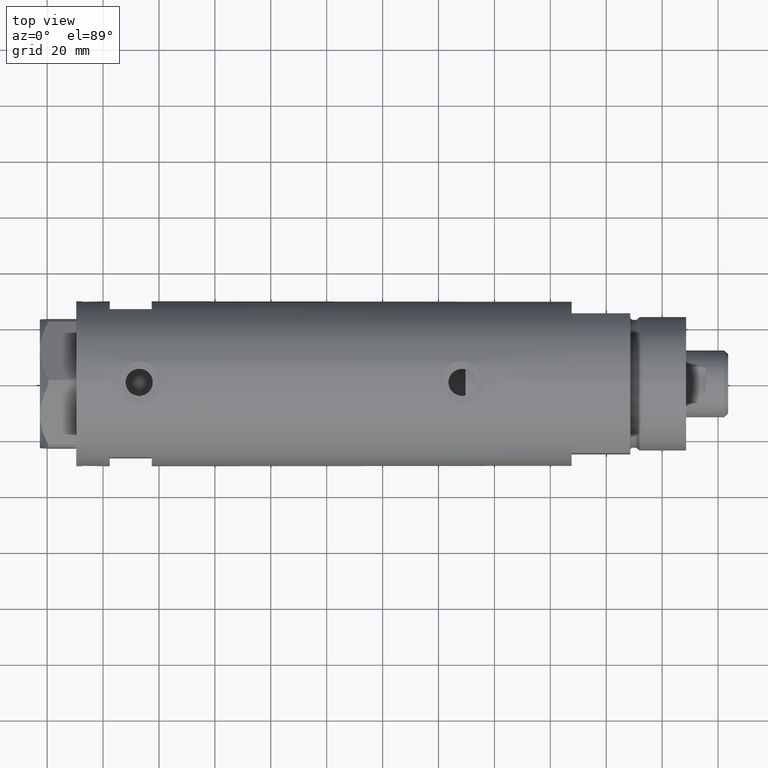
[diagram: clean part render]
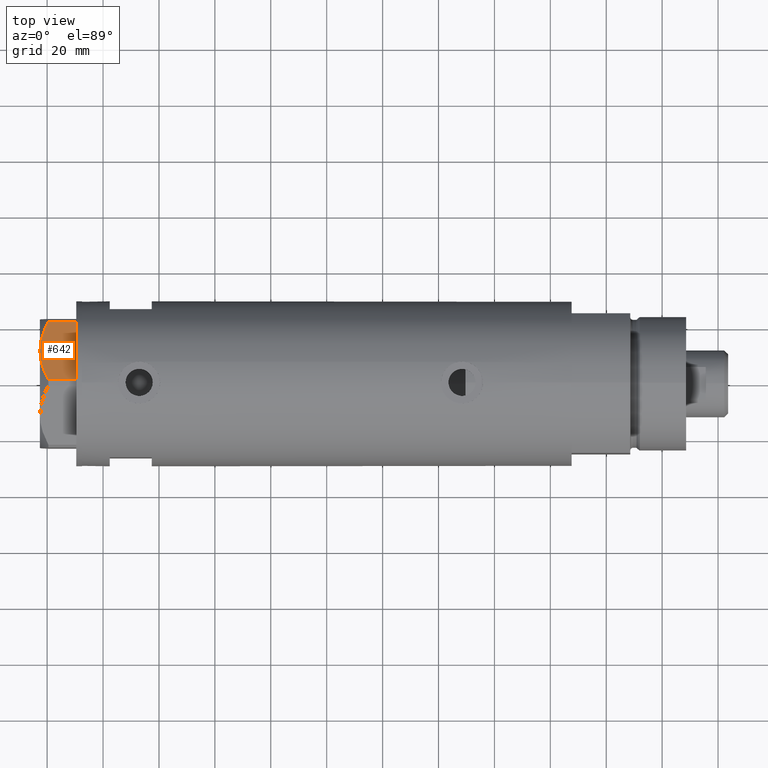
[diagram: same view with one face highlighted and labeled with its STEP entity id]
A machine part, top view. The second image highlights one B-rep face of the part: STEP entity #642.
In plain terms, the highlighted planar face has unit normal (-0, -0.5, -0.866).
Its self-contained STEP definition (entity closure, byte-faithful):
#51 = CARTESIAN_POINT ( 'NONE',  ( 13.32175508098997518, -18.86679350063487703, 13.00000000000009059 ) ) ;
#208 = CARTESIAN_POINT ( 'NONE',  ( 0.9699484522387532559, -25.99811238272273428, 13.00000000000000000 ) ) ;
#334 = B_SPLINE_CURVE_WITH_KNOTS ( 'NONE', 3,
 ( #1753, #3922, #3468, #3128, #837, #1235, #2293, #4303, #3310, #1272 ),
 .UNSPECIFIED., .F., .F.,
 ( 4, 2, 2, 2, 4 ),
 ( 0.001228959670438509785, 0.007497079744270810156, 0.01063113978118696706, 0.01219816979964504465, 0.01376519981810312224 ),
 .UNSPECIFIED. ) ;
#422 = CARTESIAN_POINT ( 'NONE',  ( 19.07486218897005870, -15.54523556316577171, 11.39727285399141365 ) ) ;
#446 = CARTESIAN_POINT ( 'NONE',  ( 18.64279229058406173, -15.79469123530766517, 11.57055225522972286 ) ) ;
#483 = ORIENTED_EDGE ( 'NONE', *, *, #1480, .T. ) ;
#560 = ORIENTED_EDGE ( 'NONE', *, *, #1383, .F. ) ;
#566 = CARTESIAN_POINT ( 'NONE',  ( 22.03005154776154129, -13.83905619136115384, 9.983800287807621743 ) ) ;
#642 = ADVANCED_FACE ( 'NONE', ( #2905 ), #1184, .F. ) ;
#688 = EDGE_LOOP ( 'NONE', ( #1562, #3251, #483, #1734, #560 ) ) ;
#837 = CARTESIAN_POINT ( 'NONE',  ( 7.836767740116727943, -22.03355241838979595, 12.63731396715694544 ) ) ;
#849 = DIRECTION ( 'NONE',  ( -0.8660254037844345998, -0.5000000000000069944, 0.000000000000000000 ) ) ;
#853 = DIRECTION ( 'NONE',  ( 0.8660254037844345998, 0.5000000000000069944, 0.000000000000000000 ) ) ;
#1071 = EDGE_CURVE ( 'NONE', #3324, #1481, #334, .T. ) ;
#1184 = PLANE ( 'NONE',  #2063 ) ;
#1235 = CARTESIAN_POINT ( 'NONE',  ( 9.197898616903064095, -21.24770314027487927, 12.85271263895580240 ) ) ;
#1272 = CARTESIAN_POINT ( 'NONE',  ( 11.50000000000018296, -19.91858428704203732, 13.00000000000000000 ) ) ;
#1383 = EDGE_CURVE ( 'NONE', #1481, #4335, #1570, .T. ) ;
#1480 = EDGE_CURVE ( 'NONE', #2479, #1510, #2251, .T. ) ;
#1481 = VERTEX_POINT ( 'NONE', #2616 ) ;
#1496 = CARTESIAN_POINT ( 'NONE',  ( 1.854543075583504180E-13, -26.55811238272274366, 13.00000000000000000 ) ) ;
#1510 = VERTEX_POINT ( 'NONE', #4300 ) ;
#1562 = ORIENTED_EDGE ( 'NONE', *, *, #1071, .F. ) ;
#1570 = B_SPLINE_CURVE_WITH_KNOTS ( 'NONE', 3,
 ( #2521, #51, #3559, #3508, #2443, #446, #422, #1792, #4161, #2835 ),
 .UNSPECIFIED., .F., .F.,
 ( 4, 2, 2, 2, 4 ),
 ( 0.01376519981810312224, 0.01998941321701590279, 0.02154546656674409533, 0.02310151991647228786, 0.02621362661592867294 ),
 .UNSPECIFIED. ) ;
#1734 = ORIENTED_EDGE ( 'NONE', *, *, #3841, .T. ) ;
#1753 = CARTESIAN_POINT ( 'NONE',  ( 0.9699484522386113694, -25.99811238272281955, 9.983800287807545359 ) ) ;
#1792 = CARTESIAN_POINT ( 'NONE',  ( 20.35958612119338085, -14.80349985506226673, 10.84420102443838552 ) ) ;
#1918 = DIRECTION ( 'NONE',  ( 0.000000000000000000, 0.000000000000000000, 1.000000000000000000 ) ) ;
#1934 = DIRECTION ( 'NONE',  ( 0.000000000000000000, 0.000000000000000000, -1.000000000000000000 ) ) ;
#1944 = EDGE_CURVE ( 'NONE', #3324, #2479, #3046, .T. ) ;
#1946 = CARTESIAN_POINT ( 'NONE',  ( 1.854543075583504180E-13, -26.55811238272274366, 0.000000000000000000 ) ) ;
#2063 = AXIS2_PLACEMENT_3D ( 'NONE', #1496, #2564, #849 ) ;
#2229 = VECTOR ( 'NONE', #1934, 1000.000000000000000 ) ;
#2251 = LINE ( 'NONE', #1946, #4384 ) ;
#2293 = CARTESIAN_POINT ( 'NONE',  ( 9.656518383329991906, -20.98291889467260773, 12.90784227772843451 ) ) ;
#2416 = CARTESIAN_POINT ( 'NONE',  ( 0.9699484522386113694, -25.99811238272281955, 9.983800287807545359 ) ) ;
#2443 = CARTESIAN_POINT ( 'NONE',  ( 17.77001848220202618, -16.29858742851869735, 11.89212886775844780 ) ) ;
#2479 = VERTEX_POINT ( 'NONE', #3463 ) ;
#2521 = CARTESIAN_POINT ( 'NONE',  ( 11.50000000000018296, -19.91858428704203732, 13.00000000000000000 ) ) ;
#2564 = DIRECTION ( 'NONE',  ( -0.5000000000000069944, 0.8660254037844345998, 0.000000000000000000 ) ) ;
#2612 = VECTOR ( 'NONE', #1918, 1000.000000000000000 ) ;
#2616 = CARTESIAN_POINT ( 'NONE',  ( 11.50000000000018296, -19.91858428704203732, 13.00000000000000000 ) ) ;
#2835 = CARTESIAN_POINT ( 'NONE',  ( 22.03005154776154129, -13.83905619136115384, 9.983800287807621743 ) ) ;
#2905 = FACE_OUTER_BOUND ( 'NONE', #688, .T. ) ;
#3046 = LINE ( 'NONE', #208, #2229 ) ;
#3128 = CARTESIAN_POINT ( 'NONE',  ( 6.946777556903778184, -22.54738849024392877, 12.42689993760377654 ) ) ;
#3251 = ORIENTED_EDGE ( 'NONE', *, *, #1944, .T. ) ;
#3310 = CARTESIAN_POINT ( 'NONE',  ( 11.04134848610952879, -20.18338686205092358, 13.00000000000009059 ) ) ;
#3324 = VERTEX_POINT ( 'NONE', #2416 ) ;
#3463 = CARTESIAN_POINT ( 'NONE',  ( 0.9699484522387533669, -25.99811238272273428, 0.000000000000000000 ) ) ;
#3468 = CARTESIAN_POINT ( 'NONE',  ( 4.320186229910045306, -24.06385169993492568, 11.62937486882610649 ) ) ;
#3508 = CARTESIAN_POINT ( 'NONE',  ( 17.32831362639728923, -16.55360584591992890, 12.04068176582933525 ) ) ;
#3559 = CARTESIAN_POINT ( 'NONE',  ( 15.11535457301044616, -17.83125835109845880, 12.70765172847700342 ) ) ;
#3640 = CARTESIAN_POINT ( 'NONE',  ( 22.03005154776153773, -13.83905619136115739, 13.00000000000000000 ) ) ;
#3841 = EDGE_CURVE ( 'NONE', #1510, #4335, #4321, .T. ) ;
#3922 = CARTESIAN_POINT ( 'NONE',  ( 2.626494320835804253, -25.04170517956326236, 10.87778242614345636 ) ) ;
#4161 = CARTESIAN_POINT ( 'NONE',  ( 21.20080365460329475, -14.31782268570100491, 10.43131750950939107 ) ) ;
#4300 = CARTESIAN_POINT ( 'NONE',  ( 22.03005154776153773, -13.83905619136115561, 0.000000000000000000 ) ) ;
#4303 = CARTESIAN_POINT ( 'NONE',  ( 10.58093321976977030, -20.44920774001120023, 12.98168640760949799 ) ) ;
#4321 = LINE ( 'NONE', #3640, #2612 ) ;
#4335 = VERTEX_POINT ( 'NONE', #566 ) ;
#4384 = VECTOR ( 'NONE', #853, 999.9999999999998863 ) ;